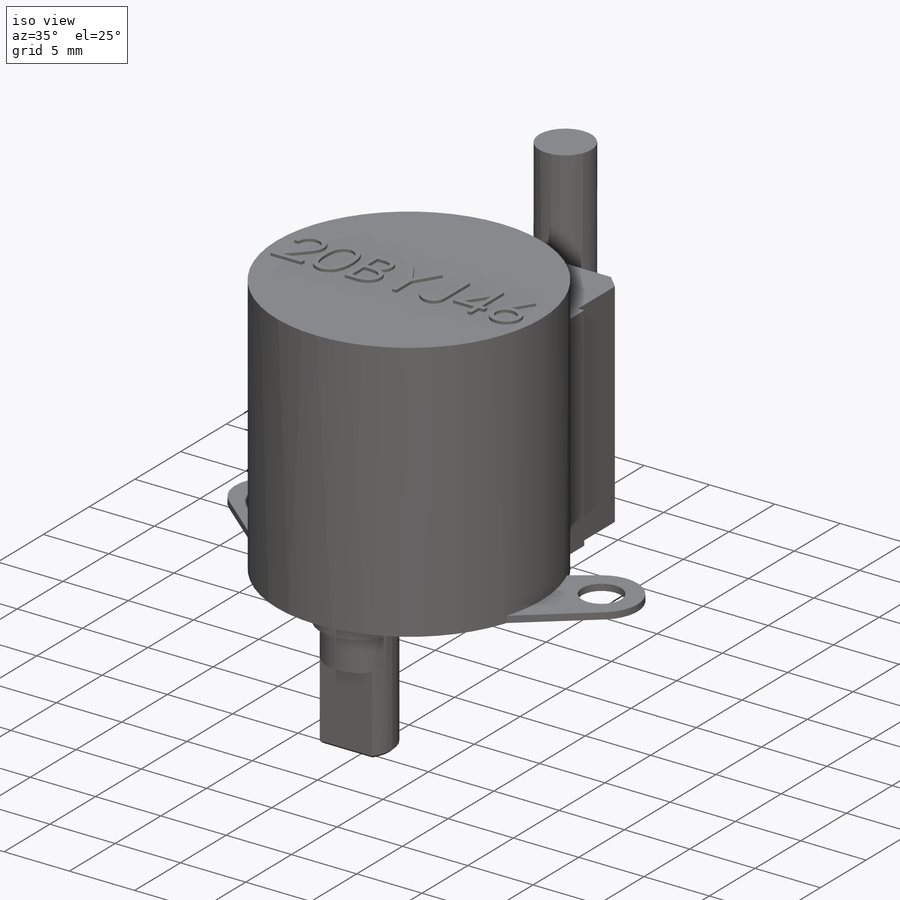
[diagram: iso view]
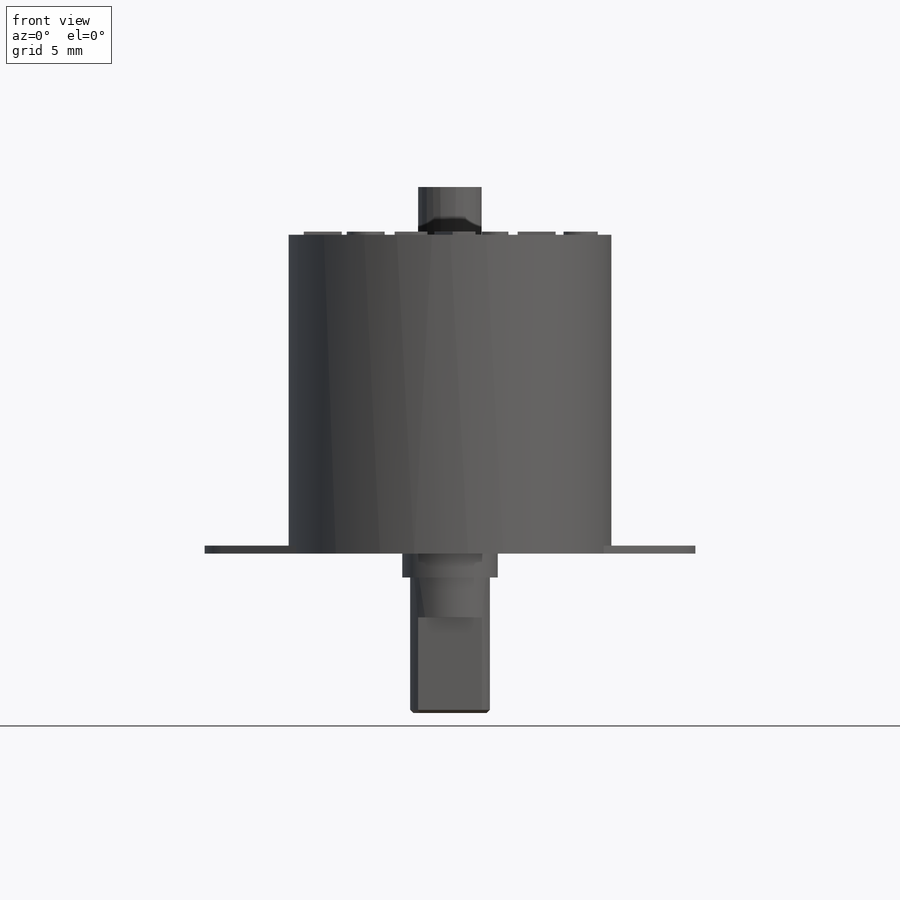
[diagram: front view]
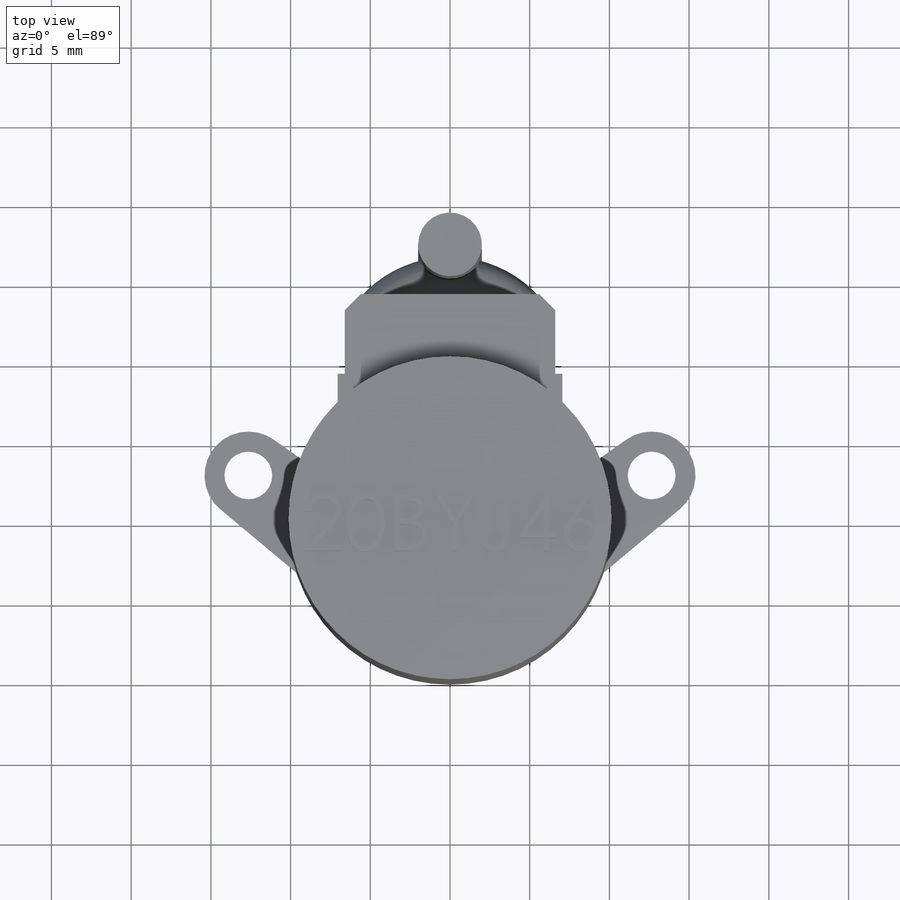
[diagram: top view]
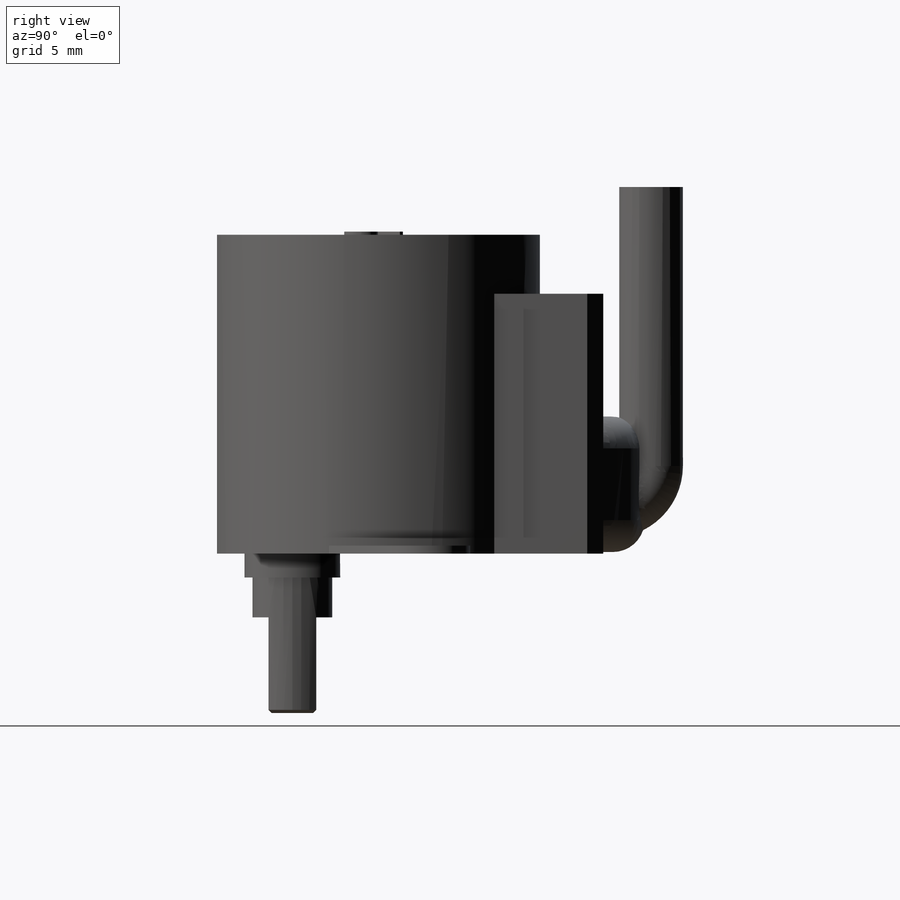
[diagram: right view]
SOLIDWORKS PART (.sldprt)
format: sldprt  version: not decoded by parser v0  size: 576,000 bytes
history: native  units: mm
features: sketch x11, extrude x7, plane x3, cut_extrude x2, chamfer x2, material x1, sweep x1, fillet x1 (+13 scaffold rows collapsed)
feature tree (41):
  scaffold x13  (default folders/planes/origin — collapsed)
  material  "Alloy Steel (SS)"
  sketch  "Sketch1"  dims[D1=20.25mm]
  extrude  "Boss-Extrude1"  Depth=20mm
  sketch  "Sketch2"  dims[D1=14.1mm D2=14.1mm]
  extrude  "Boss-Extrude2"  Depth=16.3mm
  sketch  "Sketch3"  dims[c1.D1=~3.230854mm c1.D2=5.4mm c1.D3=4.2mm c2.D1=2.75mm c2.D5=3.0mm c3.D1=6.0mm c3.D2=~11.178625mm c4.D2=90.0deg c4.D1=5.4mm c5.D2=~10.548601mm c6.D2=45.0deg c6.D1=~6.595411mm c7.D1=90.0deg c7.D3=5.4mm c7.D2=~5.565986mm c8.D2=45.0deg c8.D3=5.0mm c8.D4=25.3mm c9.D2=3.0mm c9.D6=4.0mm c9.D7=3.1mm c9.D3=~19.277513mm]
  extrude  "Boss-Extrude3"  Depth=0.5mm
  sketch  "Sketch4"  dims[c1.D1=~3.760235mm c1.D2=6.0mm c2.D1=5.4mm]
  extrude  "Boss-Extrude4"  Depth=1.5mm
  sketch  "Sketch5"  dims[D1=5.0mm]
  extrude  "Boss-Extrude5"  Depth=8.5mm
  sketch  "Sketch6"  dims[D1=2.5mm D2=3.0mm]
  cut_extrude  "Cut-Extrude1"  Depth=6mm
  chamfer  "Chamfer1"  Distance=0.2mm Angle=45deg
  sketch  "Sketch7"
  extrude  "Boss-Extrude6"  Depth=0.2mm
  sketch  "Sketch8"  dims[D1=13.2mm]
  cut_extrude  "Cut-Extrude2"  Depth=5mm
  chamfer  "Chamfer2"  Distance=1mm Angle=45deg
  sketch  "Sketch10"  dims[D2=4.0mm D1=3.0mm]
  plane  "Plane1"
  sketch  "Sketch11"  dims[D3=2.5mm D1=3.0mm D2=20.0mm]
  sweep  "Sweep1"
  sketch  "Sketch12"  dims[D1=2.5mm]
  extrude  "Boss-Extrude7"  Depth=8.5mm
  plane  "Plane2"
  plane  "Plane3"
  fillet  "Fillet1"  Radius=2mm
decode coverage: 22 of 24 modeling features carry decoded parameters
note: ~ marks probable driven/reference dimensions
note: suppression state not decoded; provenance and decode notes live in map.json
